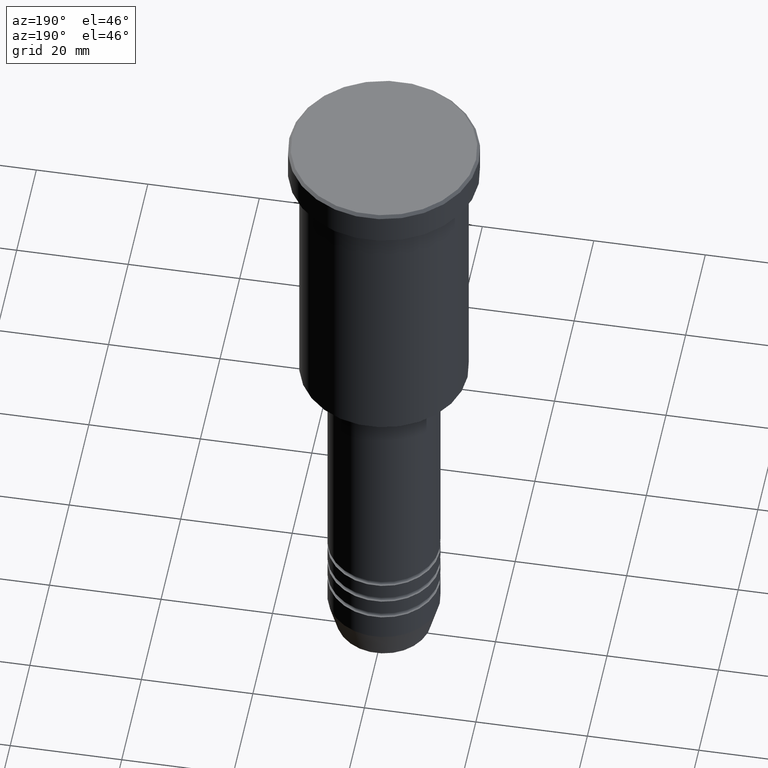
[diagram: clean part render]
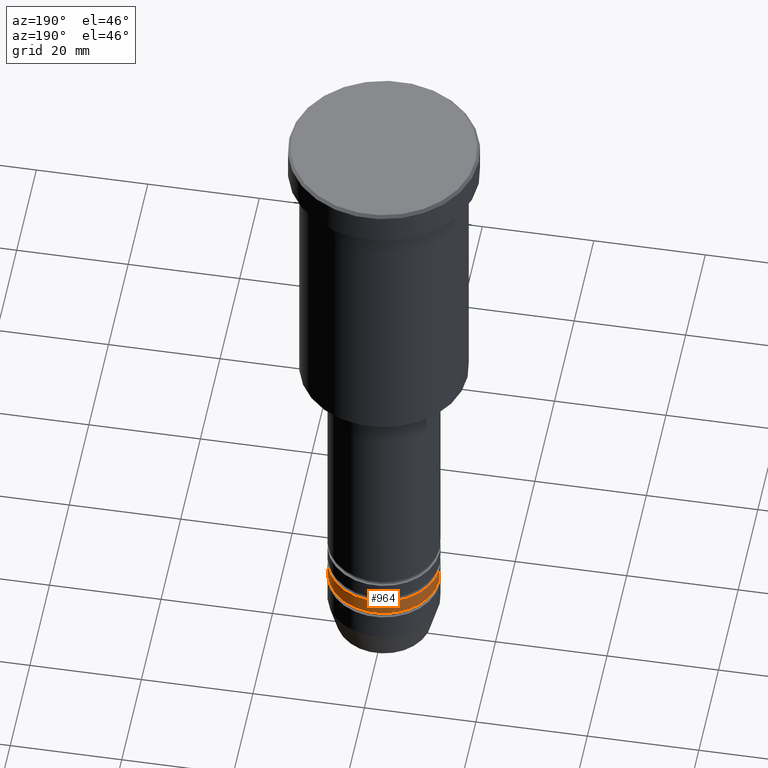
[diagram: same view with one face highlighted and labeled with its STEP entity id]
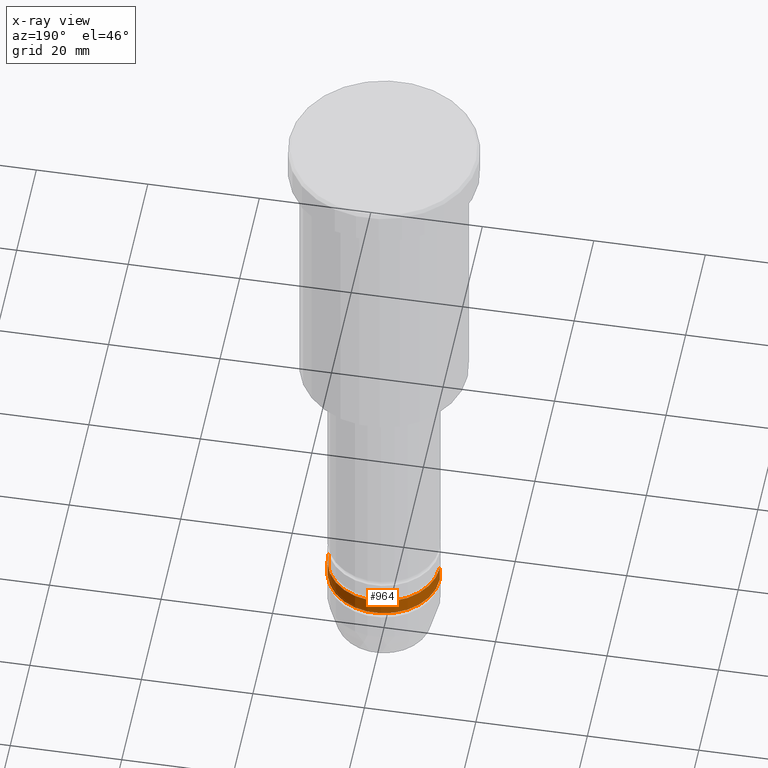
[diagram: x-ray of the same camera — body ghosted, the highlighted face saturated]
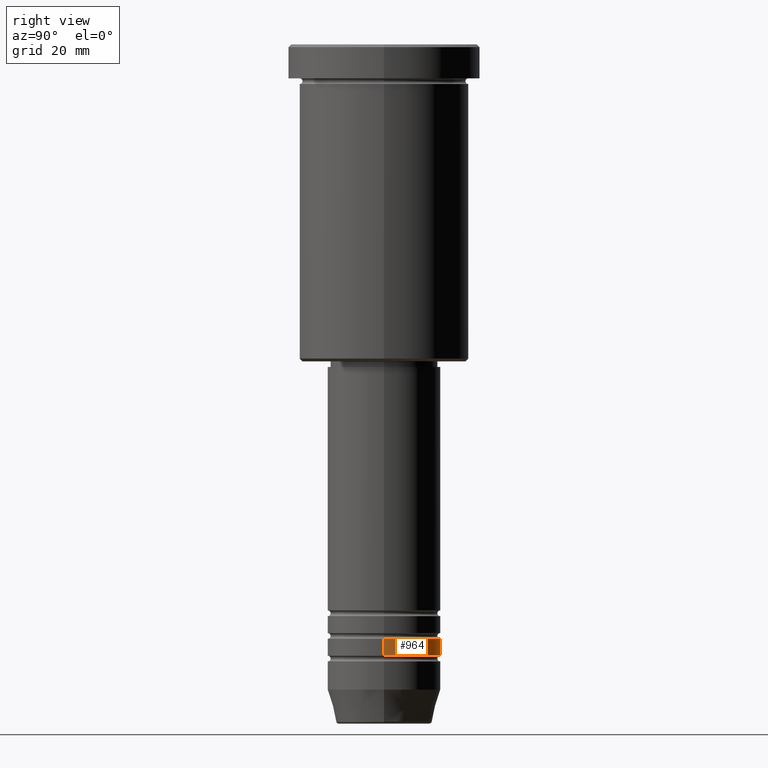
[diagram: same view with one face highlighted and labeled with its STEP entity id]
A machine part, auxiliary view. The second image highlights one B-rep face of the part: STEP entity #964.
The next image is the same camera in x-ray: the body ghosted, the highlighted face saturated — about 0% of this face is hidden behind the body in this view.
A second angle (right view) of the same face is appended — the face is thin or edge-on in the first view.
In plain terms, the highlighted cylindrical surface (partial cylindrical patch) has radius 10 mm, axis along (-0, -0, 1).
Its self-contained STEP definition (entity closure, byte-faithful):
#15 = DIRECTION ( 'NONE',  ( 1.000000000000000000, 0.000000000000000000, 0.000000000000000000 ) ) ;
#39 = CIRCLE ( 'NONE', #235, 10.00000000000000178 ) ;
#117 = LINE ( 'NONE', #868, #451 ) ;
#145 = CARTESIAN_POINT ( 'NONE',  ( -10.00000000000000178, 1.224646799147353454E-15, -107.9999999999999716 ) ) ;
#168 = DIRECTION ( 'NONE',  ( -0.000000000000000000, -0.000000000000000000, 1.000000000000000000 ) ) ;
#178 = AXIS2_PLACEMENT_3D ( 'NONE', #749, #1022, #15 ) ;
#189 = DIRECTION ( 'NONE',  ( 1.000000000000000000, 0.000000000000000000, 0.000000000000000000 ) ) ;
#222 = VERTEX_POINT ( 'NONE', #145 ) ;
#235 = AXIS2_PLACEMENT_3D ( 'NONE', #260, #168, #364 ) ;
#260 = CARTESIAN_POINT ( 'NONE',  ( 0.000000000000000000, 0.000000000000000000, -107.9999999999999716 ) ) ;
#271 = AXIS2_PLACEMENT_3D ( 'NONE', #553, #927, #189 ) ;
#364 = DIRECTION ( 'NONE',  ( 1.000000000000000000, 0.000000000000000000, 0.000000000000000000 ) ) ;
#371 = CARTESIAN_POINT ( 'NONE',  ( -10.00000000000000178, 1.224646799147353454E-15, 0.000000000000000000 ) ) ;
#387 = DIRECTION ( 'NONE',  ( -0.000000000000000000, -0.000000000000000000, 1.000000000000000000 ) ) ;
#429 = EDGE_CURVE ( 'NONE', #544, #222, #39, .T. ) ;
#451 = VECTOR ( 'NONE', #492, 1000.000000000000000 ) ;
#492 = DIRECTION ( 'NONE',  ( -0.000000000000000000, -0.000000000000000000, 1.000000000000000000 ) ) ;
#503 = CARTESIAN_POINT ( 'NONE',  ( -10.00000000000000000, 1.224646799147353256E-15, -104.9999999999999858 ) ) ;
#514 = EDGE_LOOP ( 'NONE', ( #1157, #1162, #736, #976 ) ) ;
#532 = EDGE_CURVE ( 'NONE', #222, #1115, #851, .T. ) ;
#544 = VERTEX_POINT ( 'NONE', #570 ) ;
#553 = CARTESIAN_POINT ( 'NONE',  ( 0.000000000000000000, 0.000000000000000000, 0.000000000000000000 ) ) ;
#559 = EDGE_CURVE ( 'NONE', #631, #1115, #687, .T. ) ;
#570 = CARTESIAN_POINT ( 'NONE',  ( 10.00000000000000178, 0.000000000000000000, -107.9999999999999716 ) ) ;
#631 = VERTEX_POINT ( 'NONE', #1028 ) ;
#660 = EDGE_CURVE ( 'NONE', #544, #631, #117, .T. ) ;
#687 = CIRCLE ( 'NONE', #178, 10.00000000000000000 ) ;
#736 = ORIENTED_EDGE ( 'NONE', *, *, #559, .F. ) ;
#749 = CARTESIAN_POINT ( 'NONE',  ( 0.000000000000000000, 0.000000000000000000, -104.9999999999999858 ) ) ;
#781 = VECTOR ( 'NONE', #387, 1000.000000000000000 ) ;
#851 = LINE ( 'NONE', #371, #781 ) ;
#868 = CARTESIAN_POINT ( 'NONE',  ( 10.00000000000000178, 0.000000000000000000, 0.000000000000000000 ) ) ;
#917 = CYLINDRICAL_SURFACE ( 'NONE', #271, 10.00000000000000178 ) ;
#927 = DIRECTION ( 'NONE',  ( -0.000000000000000000, -0.000000000000000000, 1.000000000000000000 ) ) ;
#964 = ADVANCED_FACE ( 'NONE', ( #1117 ), #917, .T. ) ;
#976 = ORIENTED_EDGE ( 'NONE', *, *, #660, .F. ) ;
#1022 = DIRECTION ( 'NONE',  ( -0.000000000000000000, -0.000000000000000000, 1.000000000000000000 ) ) ;
#1028 = CARTESIAN_POINT ( 'NONE',  ( 10.00000000000000000, 0.000000000000000000, -104.9999999999999858 ) ) ;
#1115 = VERTEX_POINT ( 'NONE', #503 ) ;
#1117 = FACE_OUTER_BOUND ( 'NONE', #514, .T. ) ;
#1157 = ORIENTED_EDGE ( 'NONE', *, *, #429, .T. ) ;
#1162 = ORIENTED_EDGE ( 'NONE', *, *, #532, .T. ) ;